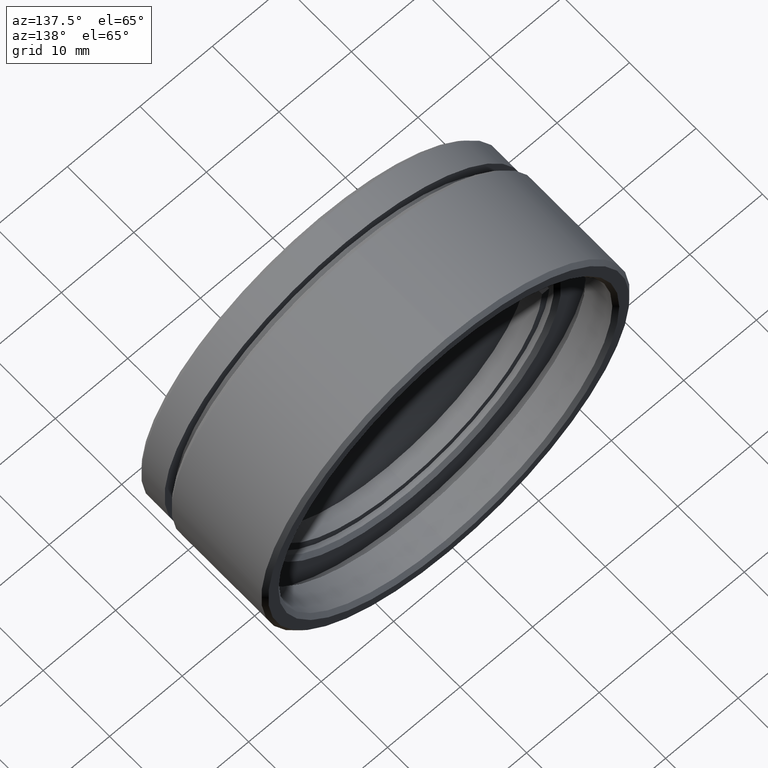
[diagram: clean part render]
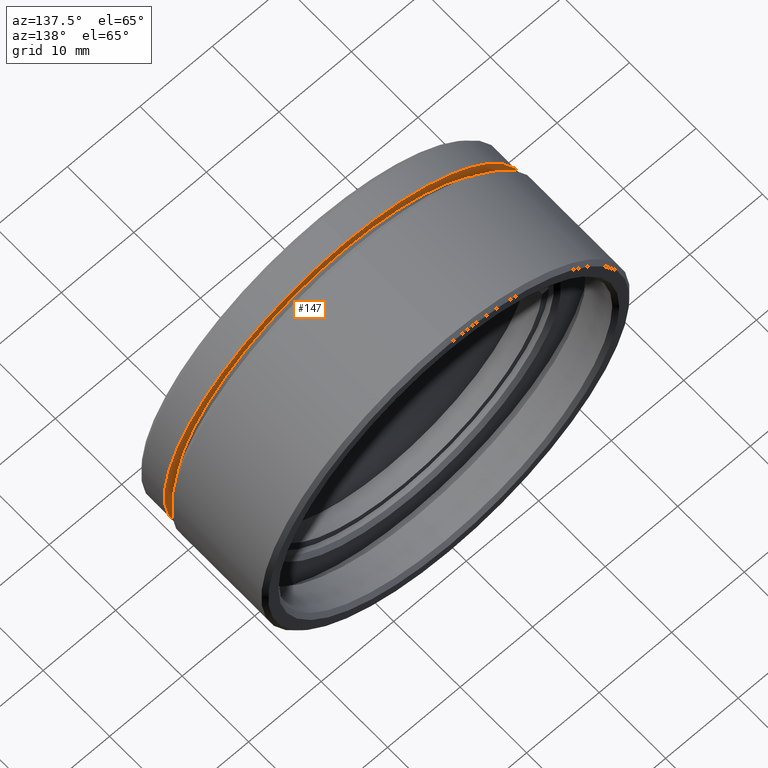
[diagram: same view with one face highlighted and labeled with its STEP entity id]
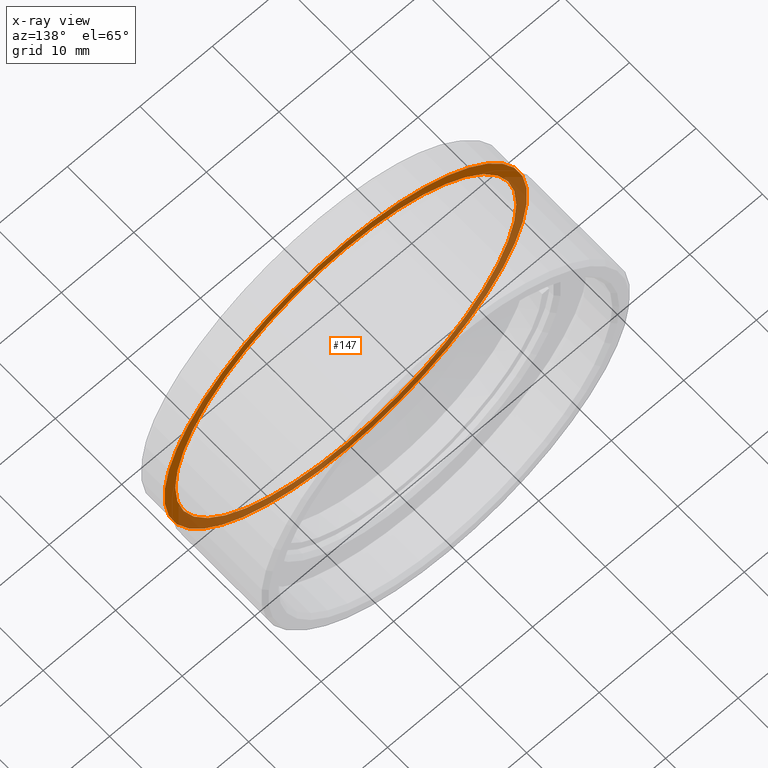
[diagram: x-ray of the same camera — body ghosted, the highlighted face saturated]
A machine part, auxiliary view. The second image highlights one B-rep face of the part: STEP entity #147.
The next image is the same camera in x-ray: the body ghosted, the highlighted face saturated — about 50% of this face is hidden behind the body in this view.
In plain terms, the highlighted planar face has unit normal (-0, 1, 0).
Its self-contained STEP definition (entity closure, byte-faithful):
#52 = CARTESIAN_POINT ( 'NONE',  ( -8.905217641199662637, -16.91880613057825045, 50.15036394347453097 ) ) ;
#147 = ADVANCED_FACE ( 'NONE', ( #432, #976 ), #311, .T. ) ;
#176 = DIRECTION ( 'NONE',  ( -0.000000000000000000, 1.000000000000000000, 0.000000000000000000 ) ) ;
#184 = DIRECTION ( 'NONE',  ( 0.000000000000000000, 0.000000000000000000, -1.000000000000000000 ) ) ;
#218 = CARTESIAN_POINT ( 'NONE',  ( -8.905217641199666190, -16.91880613057825045, 26.65036394347453097 ) ) ;
#226 = CIRCLE ( 'NONE', #1700, 23.50000000000000000 ) ;
#234 = CIRCLE ( 'NONE', #1318, 25.00000000000000000 ) ;
#241 = ORIENTED_EDGE ( 'NONE', *, *, #1454, .F. ) ;
#282 = CARTESIAN_POINT ( 'NONE',  ( -8.905217641199666190, -16.91880613057825045, 1.650363943474529638 ) ) ;
#311 = PLANE ( 'NONE',  #1134 ) ;
#368 = CARTESIAN_POINT ( 'NONE',  ( -8.905217641199666190, -16.91880613057825045, 26.65036394347453097 ) ) ;
#372 = VERTEX_POINT ( 'NONE', #282 ) ;
#432 = FACE_OUTER_BOUND ( 'NONE', #455, .T. ) ;
#436 = ORIENTED_EDGE ( 'NONE', *, *, #1348, .F. ) ;
#455 = EDGE_LOOP ( 'NONE', ( #241, #436 ) ) ;
#478 = DIRECTION ( 'NONE',  ( 0.000000000000000000, -1.000000000000000000, 0.000000000000000000 ) ) ;
#552 = VERTEX_POINT ( 'NONE', #841 ) ;
#568 = AXIS2_PLACEMENT_3D ( 'NONE', #368, #1287, #880 ) ;
#625 = CIRCLE ( 'NONE', #1431, 25.00000000000000000 ) ;
#744 = CIRCLE ( 'NONE', #568, 23.50000000000000000 ) ;
#745 = VERTEX_POINT ( 'NONE', #52 ) ;
#841 = CARTESIAN_POINT ( 'NONE',  ( -8.905217641199666190, -16.91880613057825045, 3.150363943474530970 ) ) ;
#880 = DIRECTION ( 'NONE',  ( 0.000000000000000000, 0.000000000000000000, -1.000000000000000000 ) ) ;
#913 = DIRECTION ( 'NONE',  ( 0.000000000000000000, -1.000000000000000000, 0.000000000000000000 ) ) ;
#976 = FACE_BOUND ( 'NONE', #1632, .T. ) ;
#1016 = DIRECTION ( 'NONE',  ( 0.000000000000000000, 0.000000000000000000, -1.000000000000000000 ) ) ;
#1065 = CARTESIAN_POINT ( 'NONE',  ( -8.905217641199662637, -16.91880613057825045, 51.65036394347453097 ) ) ;
#1104 = EDGE_CURVE ( 'NONE', #552, #745, #226, .T. ) ;
#1134 = AXIS2_PLACEMENT_3D ( 'NONE', #1371, #176, #1672 ) ;
#1145 = CARTESIAN_POINT ( 'NONE',  ( -8.905217641199666190, -16.91880613057825045, 26.65036394347453097 ) ) ;
#1181 = ORIENTED_EDGE ( 'NONE', *, *, #1104, .T. ) ;
#1287 = DIRECTION ( 'NONE',  ( 0.000000000000000000, -1.000000000000000000, 0.000000000000000000 ) ) ;
#1318 = AXIS2_PLACEMENT_3D ( 'NONE', #1145, #478, #1016 ) ;
#1348 = EDGE_CURVE ( 'NONE', #1443, #372, #234, .T. ) ;
#1371 = CARTESIAN_POINT ( 'NONE',  ( 16.09478235880033381, -16.91880613057825045, 26.65036394347453097 ) ) ;
#1376 = CARTESIAN_POINT ( 'NONE',  ( -8.905217641199666190, -16.91880613057825045, 26.65036394347453097 ) ) ;
#1431 = AXIS2_PLACEMENT_3D ( 'NONE', #218, #913, #1538 ) ;
#1443 = VERTEX_POINT ( 'NONE', #1065 ) ;
#1454 = EDGE_CURVE ( 'NONE', #372, #1443, #625, .T. ) ;
#1508 = DIRECTION ( 'NONE',  ( 0.000000000000000000, -1.000000000000000000, 0.000000000000000000 ) ) ;
#1518 = EDGE_CURVE ( 'NONE', #745, #552, #744, .T. ) ;
#1538 = DIRECTION ( 'NONE',  ( 0.000000000000000000, 0.000000000000000000, -1.000000000000000000 ) ) ;
#1597 = ORIENTED_EDGE ( 'NONE', *, *, #1518, .T. ) ;
#1632 = EDGE_LOOP ( 'NONE', ( #1181, #1597 ) ) ;
#1672 = DIRECTION ( 'NONE',  ( 1.000000000000000000, 0.000000000000000000, 0.000000000000000000 ) ) ;
#1700 = AXIS2_PLACEMENT_3D ( 'NONE', #1376, #1508, #184 ) ;